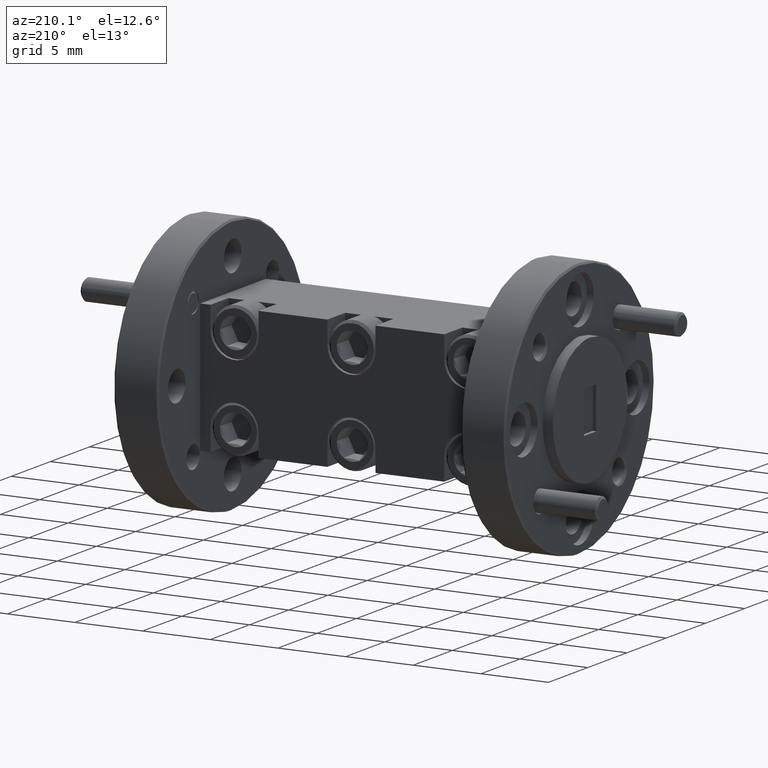
[diagram: clean part render]
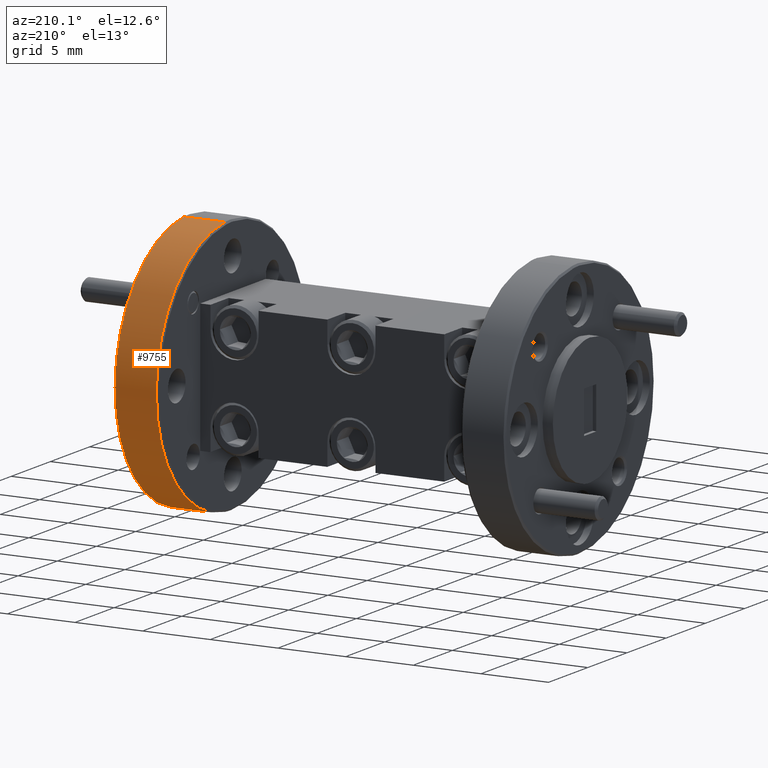
[diagram: same view with one face highlighted and labeled with its STEP entity id]
A machine part, auxiliary view. The second image highlights one B-rep face of the part: STEP entity #9755.
In plain terms, the highlighted cylindrical surface (partial cylindrical patch) has radius 9.525 mm, axis along (-1, -0, -0).
Its self-contained STEP definition (entity closure, byte-faithful):
#72 = CYLINDRICAL_SURFACE ( 'NONE', #10644, 0.3750000000000000600 ) ;
#82 = DIRECTION ( 'NONE',  ( 1.000000000000000000, 0.0000000000000000000, 0.0000000000000000000 ) ) ;
#501 = VERTEX_POINT ( 'NONE', #3099 ) ;
#585 = DIRECTION ( 'NONE',  ( 0.0000000000000000000, 8.878505979408855000E-016, -1.000000000000000000 ) ) ;
#1030 = EDGE_CURVE ( 'NONE', #8243, #9477, #5516, .T. ) ;
#2422 = CARTESIAN_POINT ( 'NONE',  ( 0.7525000000000011700, -0.03050000000000000600, 4.751391330171444000E-016 ) ) ;
#2716 = EDGE_CURVE ( 'NONE', #501, #8243, #4624, .T. ) ;
#2729 = CARTESIAN_POINT ( 'NONE',  ( 0.4450000000000001700, -0.03050000000000000600, 4.751391330171444000E-016 ) ) ;
#3099 = CARTESIAN_POINT ( 'NONE',  ( 0.5650000000000001700, 0.0000000000000000000, 0.3737576086182064500 ) ) ;
#3189 = LINE ( 'NONE', #5487, #10003 ) ;
#3411 = CARTESIAN_POINT ( 'NONE',  ( 0.4450000000000001700, 0.0000000000000000000, 0.3737576086182064500 ) ) ;
#3561 = CARTESIAN_POINT ( 'NONE',  ( 0.5650000000000001700, 0.0000000000000000000, -0.3737576086182055100 ) ) ;
#3912 = EDGE_CURVE ( 'NONE', #9477, #9893, #5429, .T. ) ;
#4624 = CIRCLE ( 'NONE', #10276, 0.3750000000000000600 ) ;
#4659 = VECTOR ( 'NONE', #6219, 39.37007874015748100 ) ;
#4974 = DIRECTION ( 'NONE',  ( -1.000000000000000000, 0.0000000000000000000, 0.0000000000000000000 ) ) ;
#5048 = AXIS2_PLACEMENT_3D ( 'NONE', #2729, #8841, #6236 ) ;
#5429 = CIRCLE ( 'NONE', #5048, 0.3750000000000000600 ) ;
#5487 = CARTESIAN_POINT ( 'NONE',  ( 0.7525000000000011700, 0.0000000000000000000, 0.3737576086182064500 ) ) ;
#5516 = LINE ( 'NONE', #8899, #4659 ) ;
#5703 = EDGE_CURVE ( 'NONE', #9893, #501, #3189, .T. ) ;
#5868 = ORIENTED_EDGE ( 'NONE', *, *, #1030, .T. ) ;
#6219 = DIRECTION ( 'NONE',  ( -1.000000000000000000, -0.0000000000000000000, -0.0000000000000000000 ) ) ;
#6236 = DIRECTION ( 'NONE',  ( 0.0000000000000000000, 0.0000000000000000000, -1.000000000000000000 ) ) ;
#6309 = CARTESIAN_POINT ( 'NONE',  ( 0.4450000000000001700, 0.0000000000000000000, -0.3737576086182055100 ) ) ;
#6373 = EDGE_LOOP ( 'NONE', ( #5868, #10364, #10381, #7199 ) ) ;
#6603 = DIRECTION ( 'NONE',  ( 0.0000000000000000000, 0.0000000000000000000, 1.000000000000000000 ) ) ;
#7199 = ORIENTED_EDGE ( 'NONE', *, *, #2716, .T. ) ;
#7763 = FACE_OUTER_BOUND ( 'NONE', #6373, .T. ) ;
#8243 = VERTEX_POINT ( 'NONE', #3561 ) ;
#8654 = DIRECTION ( 'NONE',  ( -1.000000000000000000, -0.0000000000000000000, -0.0000000000000000000 ) ) ;
#8841 = DIRECTION ( 'NONE',  ( 1.000000000000000000, -0.0000000000000000000, -0.0000000000000000000 ) ) ;
#8899 = CARTESIAN_POINT ( 'NONE',  ( 0.7525000000000011700, 0.0000000000000000000, -0.3737576086182055100 ) ) ;
#9477 = VERTEX_POINT ( 'NONE', #6309 ) ;
#9755 = ADVANCED_FACE ( 'NONE', ( #7763 ), #72, .T. ) ;
#9893 = VERTEX_POINT ( 'NONE', #3411 ) ;
#10003 = VECTOR ( 'NONE', #82, 39.37007874015748100 ) ;
#10276 = AXIS2_PLACEMENT_3D ( 'NONE', #11269, #4974, #585 ) ;
#10364 = ORIENTED_EDGE ( 'NONE', *, *, #3912, .T. ) ;
#10381 = ORIENTED_EDGE ( 'NONE', *, *, #5703, .T. ) ;
#10644 = AXIS2_PLACEMENT_3D ( 'NONE', #2422, #8654, #6603 ) ;
#11269 = CARTESIAN_POINT ( 'NONE',  ( 0.5650000000000001700, -0.03050000000000000600, 4.751391330171444000E-016 ) ) ;